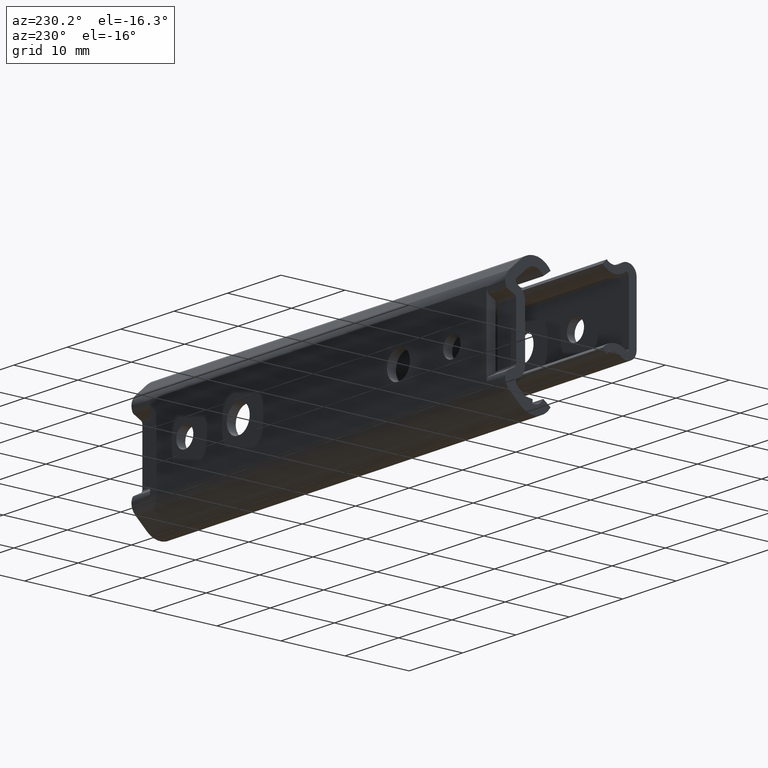
[diagram: clean part render]
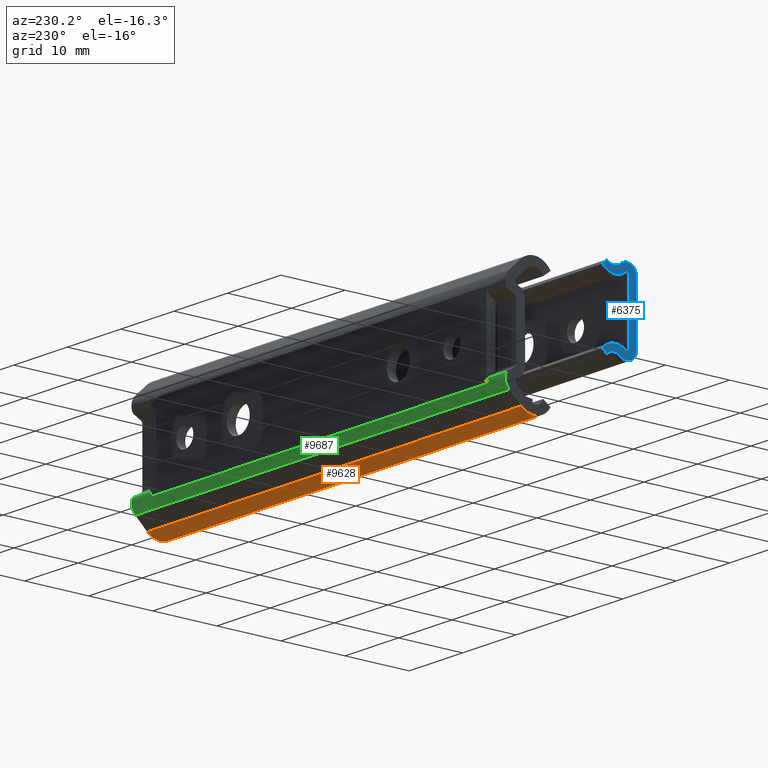
[diagram: same view with three faces highlighted in distinct colors, each labeled with its STEP entity id]
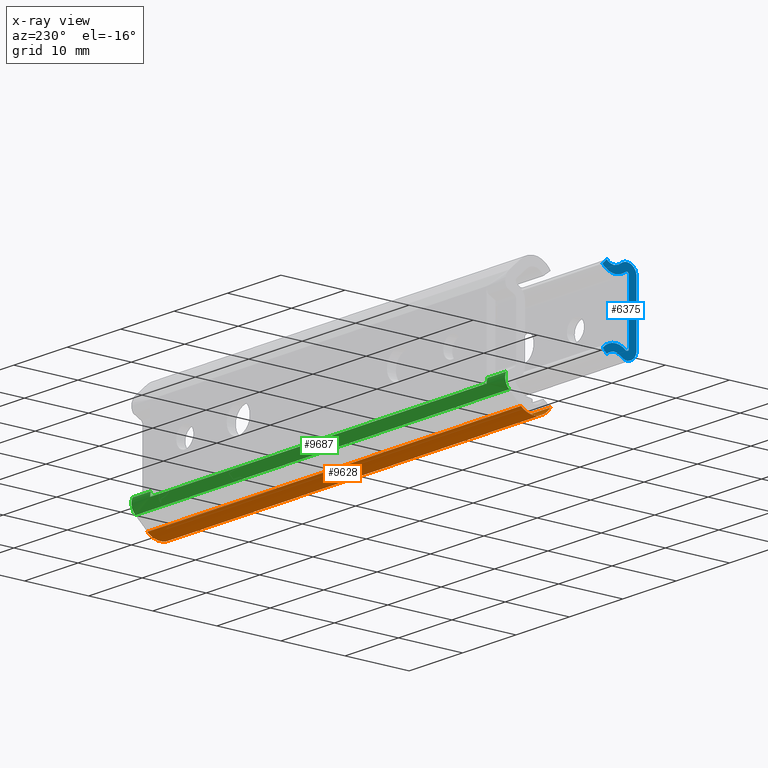
[diagram: x-ray of the same camera — body ghosted, the three highlighted faces saturated]
A machine part, auxiliary view with three faces highlighted in distinct colors.
The next image is the same camera in x-ray (body ghosted, the three faces saturated) — at least one of them is partly hidden behind the body in this view.
Their STEP definitions:

[orange] entity #9628 — the highlighted face is a freeform B-spline surface patch.
#7792=CARTESIAN_POINT('',(70.0,-7.078071239486619,-8.522037986978919));
#7793=VERTEX_POINT('',#7792);
#7799=CARTESIAN_POINT('',(70.0,-2.466980000000175,-9.201561000000000));
#7800=VERTEX_POINT('',#7799);
#7801=CARTESIAN_POINT('',(70.0,-7.078071239486623,-8.522037986978919));
#7802=CARTESIAN_POINT('',(69.999999999999986,-6.353743143967781,-9.759084982229698));
#7803=CARTESIAN_POINT('',(70.0,-4.935554901319296,-9.968079161169062));
#7804=CARTESIAN_POINT('',(69.999999999999986,-3.517366658670809,-10.177073340108425));
#7805=CARTESIAN_POINT('',(70.0,-2.466980000000175,-9.201561000000000));
#7813=(BOUNDED_CURVE()B_SPLINE_CURVE(2,(#7801,#7802,#7803,#7804,#7805),.UNSPECIFIED.,.F.,.U.)B_SPLINE_CURVE_WITH_KNOTS((3,2,3),(0.0,0.500000000000000,1.0),.UNSPECIFIED.)CURVE()GEOMETRIC_REPRESENTATION_ITEM()RATIONAL_B_SPLINE_CURVE((1.0,0.901581331480265,1.0,0.901581331480265,1.0))REPRESENTATION_ITEM(''));
#7814=EDGE_CURVE('',#7793,#7800,#7813,.T.);
#8656=CARTESIAN_POINT('',(0.0,-2.466980000000175,-9.201561000000000));
#8657=VERTEX_POINT('',#8656);
#8663=CARTESIAN_POINT('',(0.0,-7.078071239486619,-8.522037986978919));
#8664=VERTEX_POINT('',#8663);
#8665=CARTESIAN_POINT('',(0.0,-7.078071239486623,-8.522037986978919));
#8666=CARTESIAN_POINT('',(0.0,-6.353743143967781,-9.759084982229698));
#8667=CARTESIAN_POINT('',(0.0,-4.935554901319296,-9.968079161169062));
#8668=CARTESIAN_POINT('',(0.0,-3.517366658670809,-10.177073340108425));
#8669=CARTESIAN_POINT('',(0.0,-2.466980000000175,-9.201561000000000));
#8677=(BOUNDED_CURVE()B_SPLINE_CURVE(2,(#8665,#8666,#8667,#8668,#8669),.UNSPECIFIED.,.F.,.U.)B_SPLINE_CURVE_WITH_KNOTS((3,2,3),(0.0,0.500000000000000,1.0),.UNSPECIFIED.)CURVE()GEOMETRIC_REPRESENTATION_ITEM()RATIONAL_B_SPLINE_CURVE((1.0,0.901581331480265,1.0,0.901581331480265,1.0))REPRESENTATION_ITEM(''));
#8678=EDGE_CURVE('',#8664,#8657,#8677,.T.);
#9593=CARTESIAN_POINT('',(70.0,-7.078071239486619,-8.522037986978919));
#9594=CARTESIAN_POINT('',(0.0,-7.078071239486619,-8.522037986978919));
#9595=QUASI_UNIFORM_CURVE('',1,(#9593,#9594),.UNSPECIFIED.,.F.,.U.);
#9596=EDGE_CURVE('',#7793,#8664,#9595,.T.);
#9604=CARTESIAN_POINT('',(71.750000000000000,-7.128361483693322,-8.432666244155140));
#9605=CARTESIAN_POINT('',(-1.793749999999989,-7.128361483693322,-8.432666244155140));
#9606=CARTESIAN_POINT('',(71.749999999999986,-5.139968390697791,-12.112669090005582));
#9607=CARTESIAN_POINT('',(-1.793749999999989,-5.139968390697791,-12.112669090005582));
#9608=CARTESIAN_POINT('',(71.750000000000000,-2.304003409688435,-9.038025913272987));
#9609=CARTESIAN_POINT('',(-1.793749999999988,-2.304003409688435,-9.038025913272987));
#9617=(BOUNDED_SURFACE()B_SPLINE_SURFACE(1,2,((#9604,#9606,#9608),(#9605,#9607,#9609)),.UNSPECIFIED.,.F.,.F.,.U.)B_SPLINE_SURFACE_WITH_KNOTS((2,2),(3,3),(0.0,73.543749999999989),(0.0,6.149971916769982),.UNSPECIFIED.)GEOMETRIC_REPRESENTATION_ITEM()RATIONAL_B_SPLINE_SURFACE(((1.0,0.581021895955603,0.999362604717430),(1.0,0.581021895955603,0.999362604717430)))REPRESENTATION_ITEM('')SURFACE());
#9618=CARTESIAN_POINT('',(70.0,-2.466980000000175,-9.201561000000000));
#9619=CARTESIAN_POINT('',(0.0,-2.466980000000175,-9.201561000000000));
#9620=QUASI_UNIFORM_CURVE('',1,(#9618,#9619),.UNSPECIFIED.,.F.,.U.);
#9621=EDGE_CURVE('',#7800,#8657,#9620,.T.);
#9622=ORIENTED_EDGE('',*,*,#9621,.F.);
#9623=ORIENTED_EDGE('',*,*,#7814,.F.);
#9624=ORIENTED_EDGE('',*,*,#9596,.T.);
#9625=ORIENTED_EDGE('',*,*,#8678,.T.);
#9626=EDGE_LOOP('',(#9622,#9623,#9624,#9625));
#9627=FACE_OUTER_BOUND('',#9626,.T.);
#9628=ADVANCED_FACE('',(#9627),#9617,.T.);

[blue] entity #6375 — the highlighted face is a freeform B-spline surface patch.
#6212=CARTESIAN_POINT('',(-15.0,-8.264731259688309,-6.764126522708009));
#6213=CARTESIAN_POINT('',(-15.0,-2.435343273622180,-6.764126522708009));
#6214=CARTESIAN_POINT('',(-15.0,-8.264731259688309,6.764126968251089));
#6215=CARTESIAN_POINT('',(-15.0,-2.435343273622180,6.764126968251089));
#6216=B_SPLINE_SURFACE_WITH_KNOTS('',1,1,((#6212,#6214),(#6213,#6215)),.UNSPECIFIED.,.F.,.F.,.U.,(2,2),(2,2),(0.0,5.829387986066130),(0.0,13.528253490959100),.UNSPECIFIED.);
#6217=CARTESIAN_POINT('',(-15.0,-5.520770559995830,5.796694574426810));
#6218=VERTEX_POINT('',#6217);
#6219=CARTESIAN_POINT('',(-15.0,-3.360986249243195,5.906695349265091));
#6220=VERTEX_POINT('',#6219);
#6221=CARTESIAN_POINT('',(-15.0,-5.520770559995830,5.796694574426810));
#6222=CARTESIAN_POINT('',(-14.999999999999998,-4.389711761106783,4.847075548436417));
#6223=CARTESIAN_POINT('',(-15.0,-3.360986249243201,5.906695349265095));
#6231=(BOUNDED_CURVE()B_SPLINE_CURVE(2,(#6221,#6222,#6223),.UNSPECIFIED.,.F.,.U.)CURVE()GEOMETRIC_REPRESENTATION_ITEM()QUASI_UNIFORM_CURVE()RATIONAL_B_SPLINE_CURVE((1.0,0.732163616853404,1.0))REPRESENTATION_ITEM(''));
#6232=EDGE_CURVE('',#6218,#6220,#6231,.T.);
#6233=ORIENTED_EDGE('',*,*,#6232,.T.);
#6234=CARTESIAN_POINT('',(-15.0,-2.700074675465475,5.265053322097100));
#6235=VERTEX_POINT('',#6234);
#6236=CARTESIAN_POINT('',(-15.0,-3.360986249243195,5.906695349265091));
#6237=CARTESIAN_POINT('',(-15.0,-2.700074675465475,5.265053322097100));
#6238=QUASI_UNIFORM_CURVE('',1,(#6236,#6237),.UNSPECIFIED.,.F.,.U.);
#6239=EDGE_CURVE('',#6220,#6235,#6238,.T.);
#6240=ORIENTED_EDGE('',*,*,#6239,.T.);
#6241=CARTESIAN_POINT('',(-15.0,-6.292377083791050,4.877660640104110));
#6242=VERTEX_POINT('',#6241);
#6243=CARTESIAN_POINT('',(-15.0,-6.292377083791053,4.877660640104105));
#6244=CARTESIAN_POINT('',(-15.0,-4.304457225557052,3.293081267895915));
#6245=CARTESIAN_POINT('',(-15.0,-2.700074675465478,5.265053322097103));
#6253=(BOUNDED_CURVE()B_SPLINE_CURVE(2,(#6243,#6244,#6245),.UNSPECIFIED.,.F.,.U.)CURVE()GEOMETRIC_REPRESENTATION_ITEM()QUASI_UNIFORM_CURVE()RATIONAL_B_SPLINE_CURVE((1.0,0.710634092855333,1.0))REPRESENTATION_ITEM(''));
#6254=EDGE_CURVE('',#6242,#6235,#6253,.T.);
#6255=ORIENTED_EDGE('',*,*,#6254,.F.);
#6256=CARTESIAN_POINT('',(-15.0,-6.800000000000080,4.641039999999910));
#6257=VERTEX_POINT('',#6256);
#6258=CARTESIAN_POINT('',(-15.0,-6.292377083791047,4.877660640104113));
#6259=CARTESIAN_POINT('',(-15.0,-6.443144693162742,5.004242720747859));
#6260=CARTESIAN_POINT('',(-15.0,-6.621572346581410,4.921071405552879));
#6261=CARTESIAN_POINT('',(-15.0,-6.800000000000080,4.837900090357898));
#6262=CARTESIAN_POINT('',(-15.0,-6.800000000000080,4.641039999999910));
#6270=(BOUNDED_CURVE()B_SPLINE_CURVE(2,(#6258,#6259,#6260,#6261,#6262),.UNSPECIFIED.,.F.,.U.)B_SPLINE_CURVE_WITH_KNOTS((3,2,3),(0.0,0.500000000000000,1.0),.UNSPECIFIED.)CURVE()GEOMETRIC_REPRESENTATION_ITEM()RATIONAL_B_SPLINE_CURVE((1.0,0.843353268142673,1.0,0.843353268142673,1.0))REPRESENTATION_ITEM(''));
#6271=EDGE_CURVE('',#6242,#6257,#6270,.T.);
#6272=ORIENTED_EDGE('',*,*,#6271,.T.);
#6273=CARTESIAN_POINT('',(-15.0,-6.800000000000000,-4.641040000000000));
#6274=VERTEX_POINT('',#6273);
#6275=CARTESIAN_POINT('',(-15.0,-6.800000000000080,4.641039999999910));
#6276=CARTESIAN_POINT('',(-15.0,-6.800000000000000,-4.641040000000000));
#6277=QUASI_UNIFORM_CURVE('',1,(#6275,#6276),.UNSPECIFIED.,.F.,.U.);
#6278=EDGE_CURVE('',#6257,#6274,#6277,.T.);
#6279=ORIENTED_EDGE('',*,*,#6278,.T.);
#6280=CARTESIAN_POINT('',(-15.0,-6.292377049236830,-4.877660611093030));
#6281=VERTEX_POINT('',#6280);
#6282=CARTESIAN_POINT('',(-15.0,-6.800000000000000,-4.641040000000000));
#6283=CARTESIAN_POINT('',(-14.999999999999996,-6.800000000000080,-4.837900106216837));
#6284=CARTESIAN_POINT('',(-15.0,-6.621572326134618,-4.921071415083928));
#6285=CARTESIAN_POINT('',(-14.999999999999996,-6.443144652269155,-5.004242723951016));
#6286=CARTESIAN_POINT('',(-15.0,-6.292377049236831,-4.877660611093029));
#6294=(BOUNDED_CURVE()B_SPLINE_CURVE(2,(#6282,#6283,#6284,#6285,#6286),.UNSPECIFIED.,.F.,.U.)B_SPLINE_CURVE_WITH_KNOTS((3,2,3),(0.0,0.500000000000000,1.0),.UNSPECIFIED.)CURVE()GEOMETRIC_REPRESENTATION_ITEM()RATIONAL_B_SPLINE_CURVE((1.0,0.843353248524732,1.0,0.843353248524732,1.0))REPRESENTATION_ITEM(''));
#6295=EDGE_CURVE('',#6274,#6281,#6294,.T.);
#6296=ORIENTED_EDGE('',*,*,#6295,.T.);
#6297=CARTESIAN_POINT('',(-15.0,-2.700074675465480,-5.265053322097090));
#6298=VERTEX_POINT('',#6297);
#6299=CARTESIAN_POINT('',(-15.0,-2.700074675465486,-5.265053322097094));
#6300=CARTESIAN_POINT('',(-14.999999999999996,-4.304457197374020,-3.293081302536146));
#6301=CARTESIAN_POINT('',(-15.0,-6.292377049236830,-4.877660611093030));
#6309=(BOUNDED_CURVE()B_SPLINE_CURVE(2,(#6299,#6300,#6301),.UNSPECIFIED.,.F.,.U.)CURVE()GEOMETRIC_REPRESENTATION_ITEM()QUASI_UNIFORM_CURVE()RATIONAL_B_SPLINE_CURVE((1.0,0.710634099034509,1.0))REPRESENTATION_ITEM(''));
#6310=EDGE_CURVE('',#6298,#6281,#6309,.T.);
#6311=ORIENTED_EDGE('',*,*,#6310,.F.);
#6312=CARTESIAN_POINT('',(-15.0,-3.360986249243195,-5.906695349265091));
#6313=VERTEX_POINT('',#6312);
#6314=CARTESIAN_POINT('',(-15.0,-2.700074675465480,-5.265053322097090));
#6315=CARTESIAN_POINT('',(-15.0,-3.360986249243195,-5.906695349265091));
#6316=QUASI_UNIFORM_CURVE('',1,(#6314,#6315),.UNSPECIFIED.,.F.,.U.);
#6317=EDGE_CURVE('',#6298,#6313,#6316,.T.);
#6318=ORIENTED_EDGE('',*,*,#6317,.T.);
#6319=CARTESIAN_POINT('',(-15.0,-5.520770942139200,-5.796694532959880));
#6320=VERTEX_POINT('',#6319);
#6321=CARTESIAN_POINT('',(-15.0,-3.360986249243200,-5.906695349265096));
#6322=CARTESIAN_POINT('',(-15.0,-4.389711933932812,-4.847075370420143));
#6323=CARTESIAN_POINT('',(-15.0,-5.520770942139206,-5.796694532959872));
#6331=(BOUNDED_CURVE()B_SPLINE_CURVE(2,(#6321,#6322,#6323),.UNSPECIFIED.,.F.,.U.)CURVE()GEOMETRIC_REPRESENTATION_ITEM()QUASI_UNIFORM_CURVE()RATIONAL_B_SPLINE_CURVE((1.0,0.732163559787559,1.0))REPRESENTATION_ITEM(''));
#6332=EDGE_CURVE('',#6313,#6320,#6331,.T.);
#6333=ORIENTED_EDGE('',*,*,#6332,.T.);
#6334=CARTESIAN_POINT('',(-15.0,-8.0,-4.641040000000000));
#6335=VERTEX_POINT('',#6334);
#6336=CARTESIAN_POINT('',(-15.0,-8.0,-4.641040000000000));
#6337=CARTESIAN_POINT('',(-15.000000000000005,-8.000000000000080,-5.602504257474124));
#6338=CARTESIAN_POINT('',(-15.0,-7.128559730997345,-6.008712795002216));
#6339=CARTESIAN_POINT('',(-15.000000000000005,-6.257119461994609,-6.414921332530308));
#6340=CARTESIAN_POINT('',(-15.0,-5.520770942139200,-5.796694532959880));
#6348=(BOUNDED_CURVE()B_SPLINE_CURVE(2,(#6336,#6337,#6338,#6339,#6340),.UNSPECIFIED.,.F.,.U.)B_SPLINE_CURVE_WITH_KNOTS((3,2,3),(0.0,0.500000000000000,1.0),.UNSPECIFIED.)CURVE()GEOMETRIC_REPRESENTATION_ITEM()RATIONAL_B_SPLINE_CURVE((1.0,0.843353272206702,1.0,0.843353272206702,1.0))REPRESENTATION_ITEM(''));
#6349=EDGE_CURVE('',#6335,#6320,#6348,.T.);
#6350=ORIENTED_EDGE('',*,*,#6349,.F.);
#6351=CARTESIAN_POINT('',(-15.0,-8.000000000000091,4.641039999999900));
#6352=VERTEX_POINT('',#6351);
#6353=CARTESIAN_POINT('',(-15.0,-8.0,-4.641040000000000));
#6354=CARTESIAN_POINT('',(-15.0,-8.000000000000091,4.641039999999900));
#6355=QUASI_UNIFORM_CURVE('',1,(#6353,#6354),.UNSPECIFIED.,.F.,.U.);
#6356=EDGE_CURVE('',#6335,#6352,#6355,.T.);
#6357=ORIENTED_EDGE('',*,*,#6356,.T.);
#6358=CARTESIAN_POINT('',(-15.0,-5.520770559995825,5.796694574426815));
#6359=CARTESIAN_POINT('',(-14.999999999999996,-6.257119220895800,6.414921351414743));
#6360=CARTESIAN_POINT('',(-15.0,-7.128559610447943,6.008712851194377));
#6361=CARTESIAN_POINT('',(-14.999999999999996,-8.000000000000080,5.602504350974015));
#6362=CARTESIAN_POINT('',(-15.0,-8.000000000000080,4.641039999999910));
#6370=(BOUNDED_CURVE()B_SPLINE_CURVE(2,(#6358,#6359,#6360,#6361,#6362),.UNSPECIFIED.,.F.,.U.)B_SPLINE_CURVE_WITH_KNOTS((3,2,3),(0.0,0.500000000000000,1.0),.UNSPECIFIED.)CURVE()GEOMETRIC_REPRESENTATION_ITEM()RATIONAL_B_SPLINE_CURVE((1.0,0.843353248524731,1.0,0.843353248524731,1.0))REPRESENTATION_ITEM(''));
#6371=EDGE_CURVE('',#6218,#6352,#6370,.T.);
#6372=ORIENTED_EDGE('',*,*,#6371,.F.);
#6373=EDGE_LOOP('',(#6233,#6240,#6255,#6272,#6279,#6296,#6311,#6318,#6333,#6350,#6357,#6372));
#6374=FACE_OUTER_BOUND('',#6373,.T.);
#6375=ADVANCED_FACE('',(#6374),#6216,.F.);

[green] entity #9687 — the highlighted face is a freeform B-spline surface patch.
#7816=CARTESIAN_POINT('',(70.0,-0.607033335278490,-7.474194876987769));
#7817=VERTEX_POINT('',#7816);
#7823=CARTESIAN_POINT('',(70.0,-0.145791159527804,-5.352090377215760));
#7824=VERTEX_POINT('',#7823);
#7825=CARTESIAN_POINT('',(70.0,-0.607033335278490,-7.474194876987769));
#7826=CARTESIAN_POINT('',(70.0,0.362522377311526,-6.573751029787657));
#7827=CARTESIAN_POINT('',(70.0,-0.145791159527804,-5.352090377215760));
#7835=(BOUNDED_CURVE()B_SPLINE_CURVE(2,(#7825,#7826,#7827),.UNSPECIFIED.,.F.,.U.)CURVE()GEOMETRIC_REPRESENTATION_ITEM()QUASI_UNIFORM_CURVE()RATIONAL_B_SPLINE_CURVE((1.0,0.820610904097897,1.0))REPRESENTATION_ITEM(''));
#7836=EDGE_CURVE('',#7817,#7824,#7835,.T.);
#8206=CARTESIAN_POINT('',(66.500000000000000,-0.145791159527804,-5.352090377215760));
#8207=VERTEX_POINT('',#8206);
#8208=CARTESIAN_POINT('',(66.500000000000000,-0.145791159527804,-5.352090377215760));
#8209=CARTESIAN_POINT('',(70.0,-0.145791159527804,-5.352090377215760));
#8210=QUASI_UNIFORM_CURVE('',1,(#8208,#8209),.UNSPECIFIED.,.F.,.U.);
#8211=EDGE_CURVE('',#8207,#7824,#8210,.T.);
#8626=CARTESIAN_POINT('',(0.0,-0.145791159527804,-5.352090377215760));
#8627=VERTEX_POINT('',#8626);
#8641=CARTESIAN_POINT('',(0.0,-0.607033335278490,-7.474194876987769));
#8642=VERTEX_POINT('',#8641);
#8643=CARTESIAN_POINT('',(0.0,-0.607033335278490,-7.474194876987769));
#8644=CARTESIAN_POINT('',(0.0,0.362522377311526,-6.573751029787657));
#8645=CARTESIAN_POINT('',(0.0,-0.145791159527804,-5.352090377215760));
#8653=(BOUNDED_CURVE()B_SPLINE_CURVE(2,(#8643,#8644,#8645),.UNSPECIFIED.,.F.,.U.)CURVE()GEOMETRIC_REPRESENTATION_ITEM()QUASI_UNIFORM_CURVE()RATIONAL_B_SPLINE_CURVE((1.0,0.820610904097897,1.0))REPRESENTATION_ITEM(''));
#8654=EDGE_CURVE('',#8642,#8627,#8653,.T.);
#9075=CARTESIAN_POINT('',(3.499999999999950,-0.145791159527804,-5.352090377215760));
#9076=VERTEX_POINT('',#9075);
#9090=CARTESIAN_POINT('',(3.499999999999950,-0.145791159527804,-5.352090377215760));
#9091=CARTESIAN_POINT('',(0.0,-0.145791159527804,-5.352090377215760));
#9092=QUASI_UNIFORM_CURVE('',1,(#9090,#9091),.UNSPECIFIED.,.F.,.U.);
#9093=EDGE_CURVE('',#9076,#8627,#9092,.T.);
#9374=CARTESIAN_POINT('',(3.499999999999950,7.958044E-014,-6.081989000000000));
#9375=VERTEX_POINT('',#9374);
#9383=CARTESIAN_POINT('',(3.499999999999950,7.958044E-014,-6.081989000000000));
#9384=CARTESIAN_POINT('',(3.499999999999950,-1.318390E-013,-5.702479404800715));
#9385=CARTESIAN_POINT('',(3.499999999999950,-0.145791159527804,-5.352090377215760));
#9393=(BOUNDED_CURVE()B_SPLINE_CURVE(2,(#9383,#9384,#9385),.UNSPECIFIED.,.F.,.U.)CURVE()GEOMETRIC_REPRESENTATION_ITEM()QUASI_UNIFORM_CURVE()RATIONAL_B_SPLINE_CURVE((1.0,0.980629320117348,1.0))REPRESENTATION_ITEM(''));
#9394=EDGE_CURVE('',#9375,#9076,#9393,.T.);
#9634=CARTESIAN_POINT('',(70.0,-0.607033335278490,-7.474194876987769));
#9635=CARTESIAN_POINT('',(0.0,-0.607033335278490,-7.474194876987769));
#9636=QUASI_UNIFORM_CURVE('',1,(#9634,#9635),.UNSPECIFIED.,.F.,.U.);
#9637=EDGE_CURVE('',#7817,#8642,#9636,.T.);
#9645=CARTESIAN_POINT('',(71.750000000000000,-0.666048708172573,-7.526760334640059));
#9646=CARTESIAN_POINT('',(-1.793749999999989,-0.666048708172573,-7.526760334640059));
#9647=CARTESIAN_POINT('',(71.750000000000000,0.442563328355126,-6.579916206569435));
#9648=CARTESIAN_POINT('',(-1.793749999999989,0.442563328355126,-6.579916206569435));
#9649=CARTESIAN_POINT('',(71.750000000000000,-0.185087959735185,-5.264017916064240));
#9650=CARTESIAN_POINT('',(-1.793749999999989,-0.185087959735185,-5.264017916064240));
#9658=(BOUNDED_SURFACE()B_SPLINE_SURFACE(1,2,((#9645,#9647,#9649),(#9646,#9648,#9650)),.UNSPECIFIED.,.F.,.F.,.U.)B_SPLINE_SURFACE_WITH_KNOTS((2,2),(3,3),(0.0,73.543750000000003),(0.0,2.579852367361656),.UNSPECIFIED.)GEOMETRIC_REPRESENTATION_ITEM()RATIONAL_B_SPLINE_SURFACE(((1.0,0.793353340291235,1.0),(1.0,0.793353340291235,1.0)))REPRESENTATION_ITEM('')SURFACE());
#9659=CARTESIAN_POINT('',(66.500000000000000,8.521829E-014,-6.081989000000000));
#9660=VERTEX_POINT('',#9659);
#9661=CARTESIAN_POINT('',(66.500000000000000,8.521829E-014,-6.081989000000000));
#9662=CARTESIAN_POINT('',(3.499999999999950,7.958044E-014,-6.081989000000000));
#9663=QUASI_UNIFORM_CURVE('',1,(#9661,#9662),.UNSPECIFIED.,.F.,.U.);
#9664=EDGE_CURVE('',#9660,#9375,#9663,.T.);
#9665=ORIENTED_EDGE('',*,*,#9664,.F.);
#9666=CARTESIAN_POINT('',(66.500000000000000,8.521829E-014,-6.081989000000000));
#9667=CARTESIAN_POINT('',(66.500000000000000,-1.318390E-013,-5.702479404800715));
#9668=CARTESIAN_POINT('',(66.500000000000000,-0.145791159527804,-5.352090377215760));
#9676=(BOUNDED_CURVE()B_SPLINE_CURVE(2,(#9666,#9667,#9668),.UNSPECIFIED.,.F.,.U.)CURVE()GEOMETRIC_REPRESENTATION_ITEM()QUASI_UNIFORM_CURVE()RATIONAL_B_SPLINE_CURVE((1.0,0.980629320117348,1.0))REPRESENTATION_ITEM(''));
#9677=EDGE_CURVE('',#9660,#8207,#9676,.T.);
#9678=ORIENTED_EDGE('',*,*,#9677,.T.);
#9679=ORIENTED_EDGE('',*,*,#8211,.T.);
#9680=ORIENTED_EDGE('',*,*,#7836,.F.);
#9681=ORIENTED_EDGE('',*,*,#9637,.T.);
#9682=ORIENTED_EDGE('',*,*,#8654,.T.);
#9683=ORIENTED_EDGE('',*,*,#9093,.F.);
#9684=ORIENTED_EDGE('',*,*,#9394,.F.);
#9685=EDGE_LOOP('',(#9665,#9678,#9679,#9680,#9681,#9682,#9683,#9684));
#9686=FACE_OUTER_BOUND('',#9685,.T.);
#9687=ADVANCED_FACE('',(#9686),#9658,.T.);